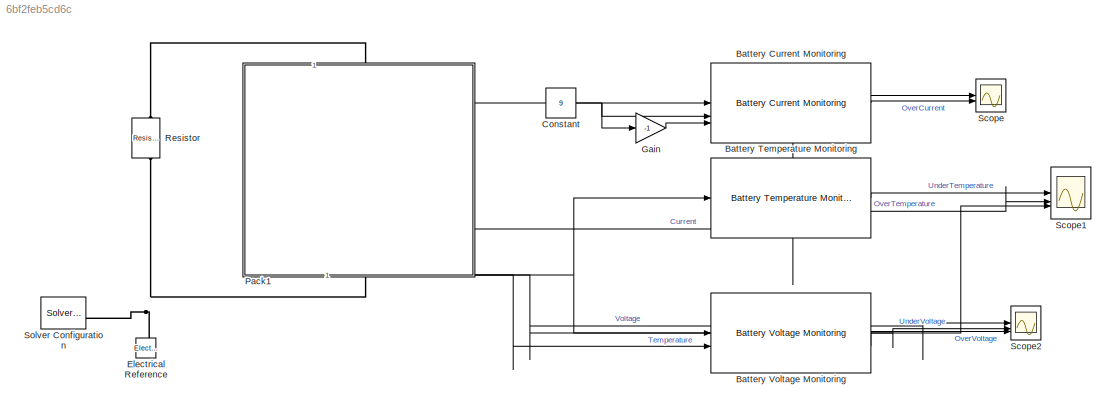
MODEL slx_6bf2feb5cd6c
KIND model
CONFIG AbsTol = auto
CONFIG EnableMultiTasking = off
CONFIG FixedStep = auto
CONFIG MaxStep = auto
CONFIG MinStep = auto
CONFIG RelTol = 1e-3
CONFIG SampleTimeConstraint = Unconstrained
CONFIG SolverName = VariableStepAuto
CONFIG StartTime = 0.0
CONFIG StopTime = 200
BLOCK [Reference] Battery Current Monitoring  REF=BatteryProtection/Battery Current
Monitoring
  LibrarySourceBlock = batt_sl_lib/Protection/Battery Current\nMonitoring
  NameLocation = top
  SourceBlock = BatteryProtection/Battery Current\nMonitoring
  SourceType = Battery Current Monitoring
BLOCK [Reference] Battery Temperature Monitoring  REF=BatteryProtection/Battery Temperature
Monitoring
  LibrarySourceBlock = batt_sl_lib/Protection/Battery Temperature\nMonitoring
  SourceBlock = BatteryProtection/Battery Temperature\nMonitoring
  SourceType = Battery Temperature Monitoring
BLOCK [Reference] Battery Voltage Monitoring  REF=BatteryProtection/Battery Voltage
Monitoring
  LibrarySourceBlock = batt_sl_lib/Protection/Battery Voltage\nMonitoring
  SourceBlock = BatteryProtection/Battery Voltage\nMonitoring
  SourceType = Battery Voltage Monitoring
BLOCK [Constant] Constant
  Value = 9
BLOCK [Reference] Electrical Reference  REF=fl_lib/Electrical/Electrical Elements/Electrical Reference
  NameLocation = right
  SourceBlock = fl_lib/Electrical/Electrical Elements/Electrical Reference
  SourceType = Electrical Reference
BLOCK [Gain] Gain
  Gain = -1
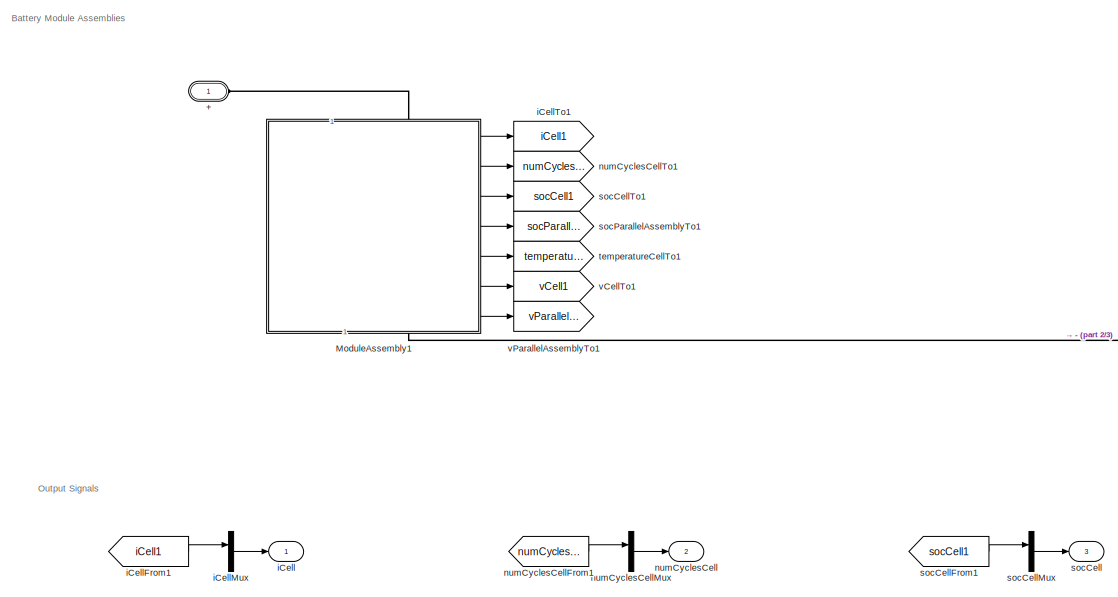
[diagram: Pack1 - part 1/3, left side, full height]
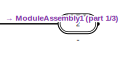
[diagram: Pack1 - part 2/3, top right region]
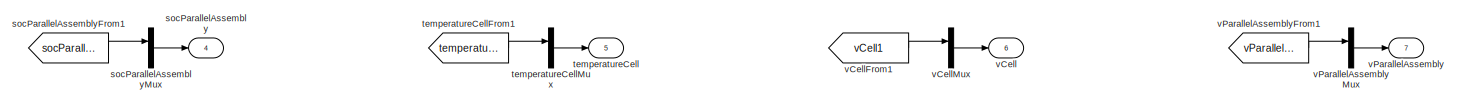
[diagram: Pack1 - part 3/3, bottom right region]
BLOCK [SubSystem] Pack1
  CopyFcn = battery_builder_rtmsupport('copyfcn',gcbh);
  LoadFcn = battery_builder_rtmsupport('loadfcn',gcbh);
  PortSchema = {"entries":[{"content":{"sides":[{"content":{"connectorIds":["LConn1"]},"type":"ConnectorPlacement.EquallySpacedRectSide","uuid":"c40ccc35-3b9e-4b84-ab06-8a4188b4b20b"},{"content":{"connectorIds":["RConn1"],"side":"RIGHT"},"type":"ConnectorPlacement.EquallySpacedRectSide","uuid":"10029335-b7e1-47cc-98dc-191e698b20d8"},{"content":{"side":"TOP"},"type":"ConnectorPlacement.EquallySpacedRectSide","uui...<+419ch>
  PreCopyFcn = battery_builder_rtmsupport('precopyfcn',gcbh);
  PreDeleteFcn = battery_builder_rtmsupport('predeletefcn',gcbh);
BLOCK [PMIOPort] Pack1/+
  Side = Left
BLOCK [PMIOPort] Pack1/-
  Port = 2
  Side = Right
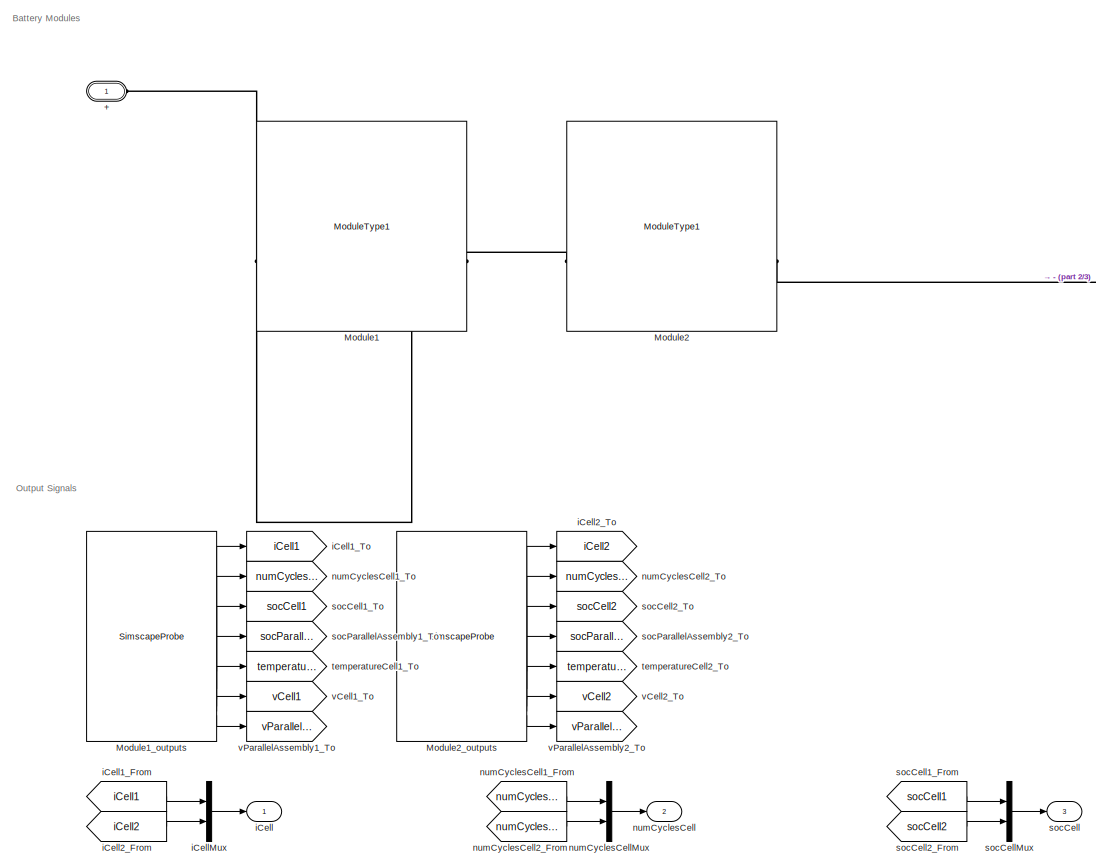
[diagram: Pack1/ModuleAssembly1 - part 1/3, left side, full height]
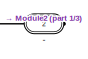
[diagram: Pack1/ModuleAssembly1 - part 2/3, top right region]
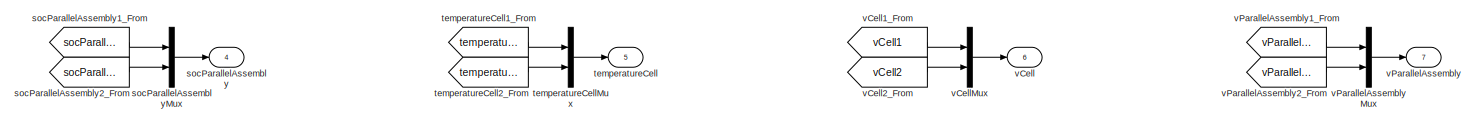
[diagram: Pack1/ModuleAssembly1 - part 3/3, bottom right region]
BLOCK [SubSystem] Pack1/ModuleAssembly1
  CopyFcn = battery_builder_rtmsupport('copyfcn',gcbh);
  LoadFcn = battery_builder_rtmsupport('loadfcn',gcbh);
  PortSchema = {"entries":[{"content":{"sides":[{"content":{"connectorIds":["LConn1"]},"type":"ConnectorPlacement.EquallySpacedRectSide","uuid":"c40ccc35-3b9e-4b84-ab06-8a4188b4b20b"},{"content":{"connectorIds":["RConn1"],"side":"RIGHT"},"type":"ConnectorPlacement.EquallySpacedRectSide","uuid":"10029335-b7e1-47cc-98dc-191e698b20d8"},{"content":{"side":"TOP"},"type":"ConnectorPlacement.EquallySpacedRectSide","uui...<+419ch>
  PreCopyFcn = battery_builder_rtmsupport('precopyfcn',gcbh);
  PreDeleteFcn = battery_builder_rtmsupport('predeletefcn',gcbh);
BLOCK [PMIOPort] Pack1/ModuleAssembly1/+
  Side = Left
BLOCK [PMIOPort] Pack1/ModuleAssembly1/-
  Port = 2
  Side = Right
BLOCK [Reference] Pack1/ModuleAssembly1/Module1  REF=trial1_lib/Modules/ModuleType1
  SourceBlock = trial1_lib/Modules/ModuleType1
  SourceType = ModuleType1
BLOCK [SimscapeProbe] Pack1/ModuleAssembly1/Module1_outputs
  BoundBlock = 3
  Variables = {"iCell":{"Probing":"ON"},"numCyclesCell":{"Probing":"ON"},"socCell":{"Probing":"ON"},"socParallelAssembly":{"Probing":"ON"},"temperatureCell":{"Probing":"ON"},"vCell":{"Probing":"ON"},"vParallelAssembly":{"Probing":"ON"}}
BLOCK [Reference] Pack1/ModuleAssembly1/Module2  REF=trial1_lib/Modules/ModuleType1
  SourceBlock = trial1_lib/Modules/ModuleType1
  SourceType = ModuleType1
BLOCK [SimscapeProbe] Pack1/ModuleAssembly1/Module2_outputs
  BoundBlock = 5
  Variables = {"iCell":{"Probing":"ON"},"numCyclesCell":{"Probing":"ON"},"socCell":{"Probing":"ON"},"socParallelAssembly":{"Probing":"ON"},"temperatureCell":{"Probing":"ON"},"vCell":{"Probing":"ON"},"vParallelAssembly":{"Probing":"ON"}}
BLOCK [Outport] Pack1/ModuleAssembly1/iCell
BLOCK [From] Pack1/ModuleAssembly1/iCell1_From
  GotoTag = iCell1
BLOCK [Goto] Pack1/ModuleAssembly1/iCell1_To
  GotoTag = iCell1
BLOCK [From] Pack1/ModuleAssembly1/iCell2_From
  GotoTag = iCell2
BLOCK [Goto] Pack1/ModuleAssembly1/iCell2_To
  GotoTag = iCell2
BLOCK [Mux] Pack1/ModuleAssembly1/iCellMux
  DisplayOption = bar
  Inputs = 2
BLOCK [Outport] Pack1/ModuleAssembly1/numCyclesCell
  Port = 2
BLOCK [From] Pack1/ModuleAssembly1/numCyclesCell1_From
  GotoTag = numCyclesCell1
BLOCK [Goto] Pack1/ModuleAssembly1/numCyclesCell1_To
  GotoTag = numCyclesCell1
BLOCK [From] Pack1/ModuleAssembly1/numCyclesCell2_From
  GotoTag = numCyclesCell2
BLOCK [Goto] Pack1/ModuleAssembly1/numCyclesCell2_To
  GotoTag = numCyclesCell2
BLOCK [Mux] Pack1/ModuleAssembly1/numCyclesCellMux
  DisplayOption = bar
  Inputs = 2
BLOCK [Outport] Pack1/ModuleAssembly1/socCell
  Port = 3
BLOCK [From] Pack1/ModuleAssembly1/socCell1_From
  GotoTag = socCell1
BLOCK [Goto] Pack1/ModuleAssembly1/socCell1_To
  GotoTag = socCell1
BLOCK [From] Pack1/ModuleAssembly1/socCell2_From
  GotoTag = socCell2
BLOCK [Goto] Pack1/ModuleAssembly1/socCell2_To
  GotoTag = socCell2
BLOCK [Mux] Pack1/ModuleAssembly1/socCellMux
  DisplayOption = bar
  Inputs = 2
BLOCK [Outport] Pack1/ModuleAssembly1/socParallelAssembly
  Port = 4
BLOCK [From] Pack1/ModuleAssembly1/socParallelAssembly1_From
  GotoTag = socParallelAssembly1
BLOCK [Goto] Pack1/ModuleAssembly1/socParallelAssembly1_To
  GotoTag = socParallelAssembly1
BLOCK [From] Pack1/ModuleAssembly1/socParallelAssembly2_From
  GotoTag = socParallelAssembly2
BLOCK [Goto] Pack1/ModuleAssembly1/socParallelAssembly2_To
  GotoTag = socParallelAssembly2
BLOCK [Mux] Pack1/ModuleAssembly1/socParallelAssemblyMux
  DisplayOption = bar
  Inputs = 2
BLOCK [Outport] Pack1/ModuleAssembly1/temperatureCell
  Port = 5
BLOCK [From] Pack1/ModuleAssembly1/temperatureCell1_From
  GotoTag = temperatureCell1
BLOCK [Goto] Pack1/ModuleAssembly1/temperatureCell1_To
  GotoTag = temperatureCell1
BLOCK [From] Pack1/ModuleAssembly1/temperatureCell2_From
  GotoTag = temperatureCell2
BLOCK [Goto] Pack1/ModuleAssembly1/temperatureCell2_To
  GotoTag = temperatureCell2
BLOCK [Mux] Pack1/ModuleAssembly1/temperatureCellMux
  DisplayOption = bar
  Inputs = 2
BLOCK [Outport] Pack1/ModuleAssembly1/vCell
  Port = 6
BLOCK [From] Pack1/ModuleAssembly1/vCell1_From
  GotoTag = vCell1
BLOCK [Goto] Pack1/ModuleAssembly1/vCell1_To
  GotoTag = vCell1
BLOCK [From] Pack1/ModuleAssembly1/vCell2_From
  GotoTag = vCell2
BLOCK [Goto] Pack1/ModuleAssembly1/vCell2_To
  GotoTag = vCell2
BLOCK [Mux] Pack1/ModuleAssembly1/vCellMux
  DisplayOption = bar
  Inputs = 2
BLOCK [Outport] Pack1/ModuleAssembly1/vParallelAssembly
  Port = 7
BLOCK [From] Pack1/ModuleAssembly1/vParallelAssembly1_From
  GotoTag = vParallelAssembly1
BLOCK [Goto] Pack1/ModuleAssembly1/vParallelAssembly1_To
  GotoTag = vParallelAssembly1
BLOCK [From] Pack1/ModuleAssembly1/vParallelAssembly2_From
  GotoTag = vParallelAssembly2
BLOCK [Goto] Pack1/ModuleAssembly1/vParallelAssembly2_To
  GotoTag = vParallelAssembly2
BLOCK [Mux] Pack1/ModuleAssembly1/vParallelAssemblyMux
  DisplayOption = bar
  Inputs = 2
BLOCK [Outport] Pack1/iCell
BLOCK [From] Pack1/iCellFrom1
  GotoTag = iCell1
BLOCK [Mux] Pack1/iCellMux
  DisplayOption = bar
  Inputs = 1
BLOCK [Goto] Pack1/iCellTo1
  GotoTag = iCell1
BLOCK [Outport] Pack1/numCyclesCell
  Port = 2
BLOCK [From] Pack1/numCyclesCellFrom1
  GotoTag = numCyclesCell1
BLOCK [Mux] Pack1/numCyclesCellMux
  DisplayOption = bar
  Inputs = 1
BLOCK [Goto] Pack1/numCyclesCellTo1
  GotoTag = numCyclesCell1
BLOCK [Outport] Pack1/socCell
  Port = 3
BLOCK [From] Pack1/socCellFrom1
  GotoTag = socCell1
BLOCK [Mux] Pack1/socCellMux
  DisplayOption = bar
  Inputs = 1
BLOCK [Goto] Pack1/socCellTo1
  GotoTag = socCell1
BLOCK [Outport] Pack1/socParallelAssembly
  Port = 4
BLOCK [From] Pack1/socParallelAssemblyFrom1
  GotoTag = socParallelAssembly1
BLOCK [Mux] Pack1/socParallelAssemblyMux
  DisplayOption = bar
  Inputs = 1
BLOCK [Goto] Pack1/socParallelAssemblyTo1
  GotoTag = socParallelAssembly1
BLOCK [Outport] Pack1/temperatureCell
  Port = 5
BLOCK [From] Pack1/temperatureCellFrom1
  GotoTag = temperatureCell1
BLOCK [Mux] Pack1/temperatureCellMux
  DisplayOption = bar
  Inputs = 1
BLOCK [Goto] Pack1/temperatureCellTo1
  GotoTag = temperatureCell1
BLOCK [Outport] Pack1/vCell
  Port = 6
BLOCK [From] Pack1/vCellFrom1
  GotoTag = vCell1
BLOCK [Mux] Pack1/vCellMux
  DisplayOption = bar
  Inputs = 1
BLOCK [Goto] Pack1/vCellTo1
  GotoTag = vCell1
BLOCK [Outport] Pack1/vParallelAssembly
  Port = 7
BLOCK [From] Pack1/vParallelAssemblyFrom1
  GotoTag = vParallelAssembly1
BLOCK [Mux] Pack1/vParallelAssemblyMux
  DisplayOption = bar
  Inputs = 1
BLOCK [Goto] Pack1/vParallelAssemblyTo1
  GotoTag = vParallelAssembly1
BLOCK [Reference] Resistor  REF=fl_lib/Electrical/Electrical Elements/Resistor
  NameLocation = left
  SourceBlock = fl_lib/Electrical/Electrical Elements/Resistor
  SourceType = Resistor
BLOCK [Scope] Scope
  ActiveDisplayYMaximum = 15.689153254386117
  ActiveDisplayYMinimum = -27.527886161367807
  Floating = off
  GraphicalSettings = {"AxesScalingProperties":{"AlignXAxis":"Center","AlignYAxis":"Center","AutoScaleXAxisLimits":false,"AxesScaling":"Manual","AxesScalingNumUpdates":10,"ExpandOnly":true,"ScaleAxesLimitsAtStop":false,"XAxisDataRange":100,"YAxisDataRange":80},"DisplayProperties":{"ColorOrder":["auto","auto","auto","auto","auto","auto","auto","auto","auto","auto","auto","auto","auto","auto","auto","auto","auto","auto",...<+2387ch>
  MultipleDisplayCache = [{"MaxYLimMag":4.6771442736737736,"MaxYLimReal":15.689153254386117,"MinYLimMag":0,"MinYLimReal":-27.527886161367807,"PlotAsMagnitudePhase":false,"ShowGrid":true,"ShowLegend":true,"Title":"%<SignalLabel>","YLabel":""}]
  NumInputPorts = 2
  ScopeFrameLocation = window
  ShowLegend = on
  WasSavedAsWebScope = on
  WindowPosition = [1.000000,49.000000,1280.000000,649.000000,]
BLOCK [Scope] Scope1
  ActiveDisplayYMaximum = 345.93306530177904
  ActiveDisplayYMinimum = -85.923493829104586
  DataLoggingVariableName = ScopeData1
  Floating = off
  GraphicalSettings = {"Style":{"BackgroundColor":[0.12941176470588237,0.12941176470588237,0.12941176470588237],"AxesColor":[0.07058823529411765,0.07058823529411765,0.07058823529411765],"LabelsColor":[0.8509803921568627,0.8509803921568627,0.8509803921568627],"PreserveColors":false,"Visible":[true,false,false,true],"LineStyle":["-","-","-","-"],"LineWidth":[1.5,1.5,1.5,1.5],"BarWidth":[0.9,0.9,0.9,0.9],"LineColor":["aut...<+2396ch>
  MultipleDisplayCache = [{"MaxYLimMag":335.74853965472,"MaxYLimReal":345.93306530177904,"MinYLimMag":0,"MinYLimReal":-85.923493829104586,"PlotAsMagnitudePhase":false,"ShowGrid":true,"ShowLegend":true,"Title":"%<SignalLabel>","YLabel":""}]
  NumInputPorts = 3
  ScopeFrameLocation = window
  ShowLegend = on
  WasSavedAsWebScope = on
  WindowPosition = [1.000000,49.000000,1280.000000,649.000000,]
BLOCK [Scope] Scope2
  DataLoggingVariableName = ScopeData2
  Floating = off
  GraphicalSettings = {"GraphicalSettings":{"LegacySettings":true,"Style":{"Style":{"PlotType":"Auto"}}}}
  NumInputPorts = 3
  WasSavedAsWebScope = on
BLOCK [Reference] Solver Configuration  REF=nesl_utility/Solver
Configuration
  SourceBlock = nesl_utility/Solver\nConfiguration
  SourceType = Solver\nConfiguration
ANNOTATION Pack1: Battery Module Assemblies
ANNOTATION Pack1: Output Signals
ANNOTATION Pack1/ModuleAssembly1: Battery Modules
ANNOTATION Pack1/ModuleAssembly1: Output Signals
LINE Battery Current Monitoring:1 -> Scope:2
LINE Battery Temperature Monitoring:1 -> Scope1:1
LINE Battery Temperature Monitoring:2 -> Scope1:2
LINE Battery Voltage Monitoring:1 -> Scope2:2
LINE Battery Voltage Monitoring:2 -> Scope2:3
NET Constant:1 -> Battery Current Monitoring:2, Gain:1
LINE Gain:1 -> Battery Current Monitoring:3
LINE Pack1/ModuleAssembly1/Module1_outputs:1 -> Pack1/ModuleAssembly1/iCell1_To:1
LINE Pack1/ModuleAssembly1/Module1_outputs:2 -> Pack1/ModuleAssembly1/numCyclesCell1_To:1
LINE Pack1/ModuleAssembly1/Module1_outputs:3 -> Pack1/ModuleAssembly1/socCell1_To:1
LINE Pack1/ModuleAssembly1/Module1_outputs:4 -> Pack1/ModuleAssembly1/socParallelAssembly1_To:1
LINE Pack1/ModuleAssembly1/Module1_outputs:5 -> Pack1/ModuleAssembly1/temperatureCell1_To:1
LINE Pack1/ModuleAssembly1/Module1_outputs:6 -> Pack1/ModuleAssembly1/vCell1_To:1
LINE Pack1/ModuleAssembly1/Module1_outputs:7 -> Pack1/ModuleAssembly1/vParallelAssembly1_To:1
LINE Pack1/ModuleAssembly1/Module2_outputs:1 -> Pack1/ModuleAssembly1/iCell2_To:1
LINE Pack1/ModuleAssembly1/Module2_outputs:2 -> Pack1/ModuleAssembly1/numCyclesCell2_To:1
LINE Pack1/ModuleAssembly1/Module2_outputs:3 -> Pack1/ModuleAssembly1/socCell2_To:1
LINE Pack1/ModuleAssembly1/Module2_outputs:4 -> Pack1/ModuleAssembly1/socParallelAssembly2_To:1
LINE Pack1/ModuleAssembly1/Module2_outputs:5 -> Pack1/ModuleAssembly1/temperatureCell2_To:1
LINE Pack1/ModuleAssembly1/Module2_outputs:6 -> Pack1/ModuleAssembly1/vCell2_To:1
LINE Pack1/ModuleAssembly1/Module2_outputs:7 -> Pack1/ModuleAssembly1/vParallelAssembly2_To:1
LINE Pack1/ModuleAssembly1/iCell1_From:1 -> Pack1/ModuleAssembly1/iCellMux:1
LINE Pack1/ModuleAssembly1/iCell2_From:1 -> Pack1/ModuleAssembly1/iCellMux:2
LINE Pack1/ModuleAssembly1/iCellMux:1 -> Pack1/ModuleAssembly1/iCell:1
LINE Pack1/ModuleAssembly1/numCyclesCell1_From:1 -> Pack1/ModuleAssembly1/numCyclesCellMux:1
LINE Pack1/ModuleAssembly1/numCyclesCell2_From:1 -> Pack1/ModuleAssembly1/numCyclesCellMux:2
LINE Pack1/ModuleAssembly1/numCyclesCellMux:1 -> Pack1/ModuleAssembly1/numCyclesCell:1
LINE Pack1/ModuleAssembly1/socCell1_From:1 -> Pack1/ModuleAssembly1/socCellMux:1
LINE Pack1/ModuleAssembly1/socCell2_From:1 -> Pack1/ModuleAssembly1/socCellMux:2
LINE Pack1/ModuleAssembly1/socCellMux:1 -> Pack1/ModuleAssembly1/socCell:1
LINE Pack1/ModuleAssembly1/socParallelAssembly1_From:1 -> Pack1/ModuleAssembly1/socParallelAssemblyMux:1
LINE Pack1/ModuleAssembly1/socParallelAssembly2_From:1 -> Pack1/ModuleAssembly1/socParallelAssemblyMux:2
LINE Pack1/ModuleAssembly1/socParallelAssemblyMux:1 -> Pack1/ModuleAssembly1/socParallelAssembly:1
LINE Pack1/ModuleAssembly1/temperatureCell1_From:1 -> Pack1/ModuleAssembly1/temperatureCellMux:1
LINE Pack1/ModuleAssembly1/temperatureCell2_From:1 -> Pack1/ModuleAssembly1/temperatureCellMux:2
LINE Pack1/ModuleAssembly1/temperatureCellMux:1 -> Pack1/ModuleAssembly1/temperatureCell:1
LINE Pack1/ModuleAssembly1/vCell1_From:1 -> Pack1/ModuleAssembly1/vCellMux:1
LINE Pack1/ModuleAssembly1/vCell2_From:1 -> Pack1/ModuleAssembly1/vCellMux:2
LINE Pack1/ModuleAssembly1/vCellMux:1 -> Pack1/ModuleAssembly1/vCell:1
LINE Pack1/ModuleAssembly1/vParallelAssembly1_From:1 -> Pack1/ModuleAssembly1/vParallelAssemblyMux:1
LINE Pack1/ModuleAssembly1/vParallelAssembly2_From:1 -> Pack1/ModuleAssembly1/vParallelAssemblyMux:2
LINE Pack1/ModuleAssembly1/vParallelAssemblyMux:1 -> Pack1/ModuleAssembly1/vParallelAssembly:1
LINE Pack1/ModuleAssembly1:1 -> Pack1/iCellTo1:1
LINE Pack1/ModuleAssembly1:2 -> Pack1/numCyclesCellTo1:1
LINE Pack1/ModuleAssembly1:3 -> Pack1/socCellTo1:1
LINE Pack1/ModuleAssembly1:4 -> Pack1/socParallelAssemblyTo1:1
LINE Pack1/ModuleAssembly1:5 -> Pack1/temperatureCellTo1:1
LINE Pack1/ModuleAssembly1:6 -> Pack1/vCellTo1:1
LINE Pack1/ModuleAssembly1:7 -> Pack1/vParallelAssemblyTo1:1
LINE Pack1/iCellFrom1:1 -> Pack1/iCellMux:1
LINE Pack1/iCellMux:1 -> Pack1/iCell:1
LINE Pack1/numCyclesCellFrom1:1 -> Pack1/numCyclesCellMux:1
LINE Pack1/numCyclesCellMux:1 -> Pack1/numCyclesCell:1
LINE Pack1/socCellFrom1:1 -> Pack1/socCellMux:1
LINE Pack1/socCellMux:1 -> Pack1/socCell:1
LINE Pack1/socParallelAssemblyFrom1:1 -> Pack1/socParallelAssemblyMux:1
LINE Pack1/socParallelAssemblyMux:1 -> Pack1/socParallelAssembly:1
LINE Pack1/temperatureCellFrom1:1 -> Pack1/temperatureCellMux:1
LINE Pack1/temperatureCellMux:1 -> Pack1/temperatureCell:1
LINE Pack1/vCellFrom1:1 -> Pack1/vCellMux:1
LINE Pack1/vCellMux:1 -> Pack1/vCell:1
LINE Pack1/vParallelAssemblyFrom1:1 -> Pack1/vParallelAssemblyMux:1
LINE Pack1/vParallelAssemblyMux:1 -> Pack1/vParallelAssembly:1
NET Pack1:1 -> Battery Current Monitoring:1, Scope:1
NET Pack1:5 -> Battery Temperature Monitoring:1, Scope1:3
NET Pack1:6 -> Battery Voltage Monitoring:1, Scope2:1
LINE Pack1:7 -> Battery Voltage Monitoring:2
PNET net1: Electrical Reference:LConn1 -- Pack1:RConn1 -- Resistor:RConn1 -- Solver Configuration:RConn1
PLINE Pack1/+:RConn1 -- Pack1/ModuleAssembly1:LConn1
PLINE Pack1/-:RConn1 -- Pack1/ModuleAssembly1:RConn1
PLINE Pack1/ModuleAssembly1/+:RConn1 -- Pack1/ModuleAssembly1/Module1:LConn1
PLINE Pack1/ModuleAssembly1/-:RConn1 -- Pack1/ModuleAssembly1/Module2:RConn1
PLINE Pack1/ModuleAssembly1/Module1:RConn1 -- Pack1/ModuleAssembly1/Module2:LConn1
PLINE Pack1:LConn1 -- Resistor:LConn1
note: NET lines group one-source signal fan-out (src -> all destinations, sorted); 1:1 wires keep LINE; PNET lines group multi-terminal physical nets as a canonical sorted terminal list (undirected conserving connections); 2-terminal nets keep the pairwise PLINE form
